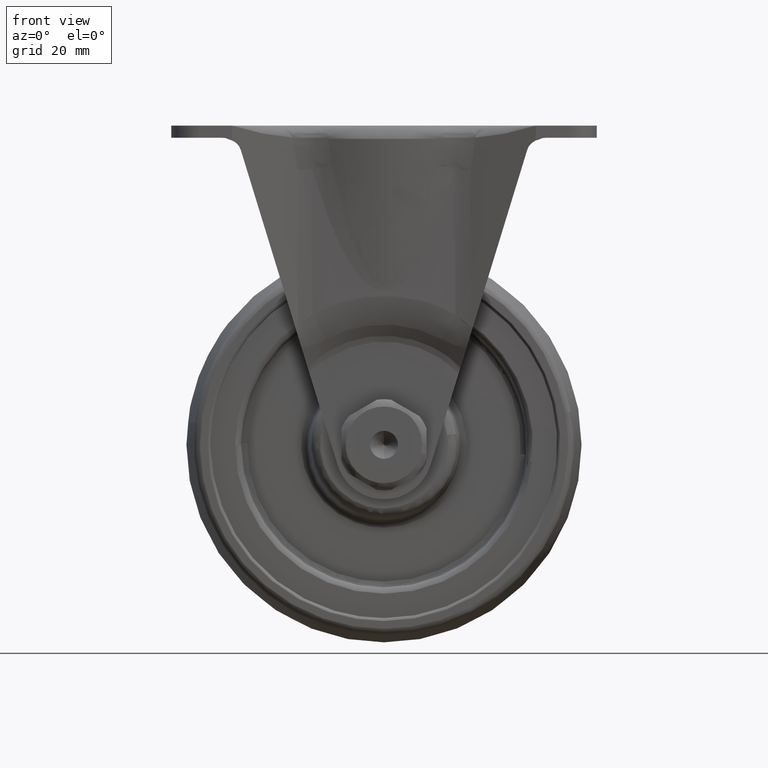
[diagram: clean part render]
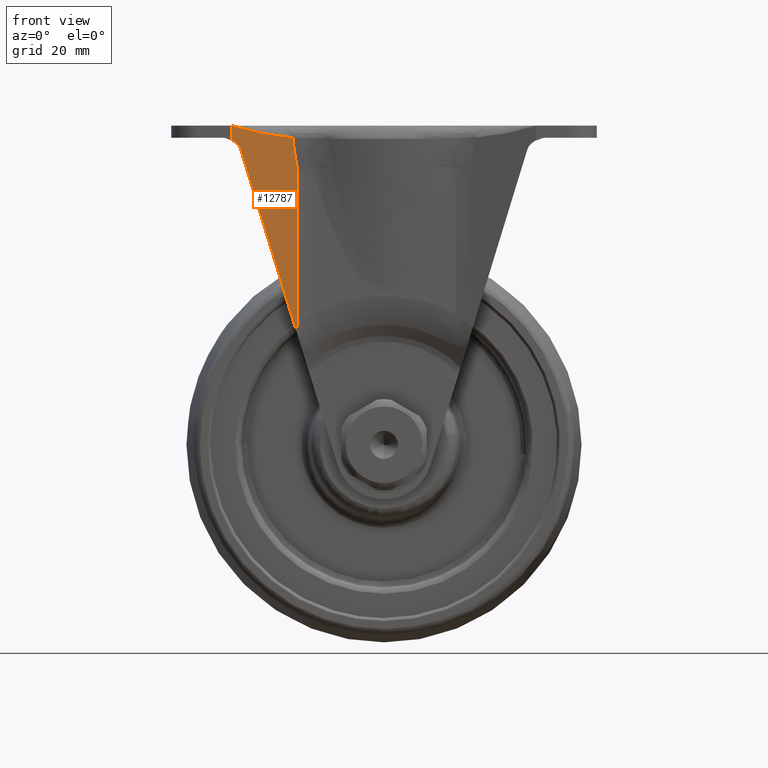
[diagram: same view with one face highlighted and labeled with its STEP entity id]
A machine part, front view. The second image highlights one B-rep face of the part: STEP entity #12787.
In plain terms, the highlighted face is a freeform B-spline surface patch.
Its self-contained STEP definition (entity closure, byte-faithful):
#8333=CARTESIAN_POINT('',(-14.250059904178240,-20.723892466977048,45.268858470410002));
#8334=VERTEX_POINT('',#8333);
#8401=CARTESIAN_POINT('',(-14.908325734011481,-20.893887019310849,49.444294306365101));
#8402=VERTEX_POINT('',#8401);
#8416=CARTESIAN_POINT('',(-14.250059904178309,-20.723892466977070,45.268858470409953));
#8417=CARTESIAN_POINT('',(-14.580186172123796,-20.809146272642856,47.327229750380120));
#8418=CARTESIAN_POINT('',(-14.908325734011481,-20.893887019310849,49.444294306365101));
#8426=(BOUNDED_CURVE()B_SPLINE_CURVE(2,(#8416,#8417,#8418),.UNSPECIFIED.,.F.,.U.)CURVE()GEOMETRIC_REPRESENTATION_ITEM()QUASI_UNIFORM_CURVE()RATIONAL_B_SPLINE_CURVE((1.0,0.999958882724460,1.0))REPRESENTATION_ITEM(''));
#8427=EDGE_CURVE('',#8334,#8402,#8426,.T.);
#8496=CARTESIAN_POINT('',(-14.989855178939120,-20.914941676661101,50.513882271842697));
#8497=VERTEX_POINT('',#8496);
#8511=CARTESIAN_POINT('',(-14.908325734011459,-20.893887019310860,49.444294306365059));
#8512=CARTESIAN_POINT('',(-14.962721287333331,-20.907934456253241,49.795239182619632));
#8513=CARTESIAN_POINT('',(-14.990588619352650,-20.915131084752950,50.151626764992692));
#8514=CARTESIAN_POINT('',(-14.989855178939139,-20.914941676661101,50.513882271842697));
#8515=QUASI_UNIFORM_CURVE('',3,(#8511,#8512,#8513,#8514),.UNSPECIFIED.,.F.,.U.);
#8516=EDGE_CURVE('',#8402,#8497,#8515,.T.);
#9537=CARTESIAN_POINT('',(-24.999914554479648,-23.500000000000000,52.500000000000000));
#9538=VERTEX_POINT('',#9537);
#9539=CARTESIAN_POINT('',(-14.989855178939120,-20.914941676661101,50.513882271842697));
#9540=CARTESIAN_POINT('',(-18.326541637452632,-21.776627784440720,50.637638191180592));
#9541=CARTESIAN_POINT('',(-21.663228095966140,-22.638313892220381,51.568819095590293));
#9542=CARTESIAN_POINT('',(-24.999914554479648,-23.500000000000000,52.500000000000000));
#9543=B_SPLINE_CURVE_WITH_KNOTS('',3,(#9539,#9540,#9541,#9542),.UNSPECIFIED.,.F.,.U.,(4,4),(0.068819095590296,1.0),.UNSPECIFIED.);
#9544=EDGE_CURVE('',#8497,#9538,#9543,.T.);
#10717=CARTESIAN_POINT('',(-23.567250999525001,-23.130020291754750,48.539384805727799));
#10718=VERTEX_POINT('',#10717);
#10726=CARTESIAN_POINT('',(-24.999914554479648,-23.500000000000000,50.078461721846303));
#10727=VERTEX_POINT('',#10726);
#10728=CARTESIAN_POINT('',(-24.999914554479648,-23.500000000000000,50.078461721846303));
#10729=CARTESIAN_POINT('',(-24.836660889227449,-23.457840385322090,50.003521344869583));
#10730=CARTESIAN_POINT('',(-24.680704470820491,-23.417565255839250,49.917141328542563));
#10731=CARTESIAN_POINT('',(-24.459889025076588,-23.360540538549671,49.767004820238732));
#10732=CARTESIAN_POINT('',(-24.388480406212139,-23.342099544582641,49.713515894448939));
#10733=CARTESIAN_POINT('',(-24.285061076836570,-23.315391910974629,49.627492179568897));
#10734=CARTESIAN_POINT('',(-24.251204650916719,-23.306648622614421,49.597850854146081));
#10735=CARTESIAN_POINT('',(-24.184807257706179,-23.289501757892879,49.536506004690899));
#10736=CARTESIAN_POINT('',(-24.152169315163299,-23.281073138055469,49.504700545341883));
#10737=CARTESIAN_POINT('',(-23.993766706171051,-23.240166289509240,49.341465400224017));
#10738=CARTESIAN_POINT('',(-23.883174256670848,-23.211606225941811,49.198569847455488));
#10739=CARTESIAN_POINT('',(-23.766707191988608,-23.181529066191160,49.003336521981687));
#10740=CARTESIAN_POINT('',(-23.744506992522719,-23.175795952304799,48.963455699553933));
#10741=CARTESIAN_POINT('',(-23.702353058223679,-23.164909865156559,48.881979929326690));
#10742=CARTESIAN_POINT('',(-23.682387484057578,-23.159753834433669,48.840339011857182));
#10743=CARTESIAN_POINT('',(-23.626504994405639,-23.145322402053100,48.714101826415423));
#10744=CARTESIAN_POINT('',(-23.594375603822400,-23.137025113751911,48.627793215171081));
#10745=CARTESIAN_POINT('',(-23.567250999525001,-23.130020291754750,48.539384805727799));
#10746=B_SPLINE_CURVE_WITH_KNOTS('',3,(#10728,#10729,#10730,#10731,#10732,#10733,#10734,#10735,#10736,#10737,#10738,#10739,#10740,#10741,#10742,#10743,#10744,#10745),.UNSPECIFIED.,.F.,.U.,(4,2,2,2,2,2,2,2,4),(0.0,0.250000000000021,0.375000000000027,0.437500000000027,0.500000000000027,0.750000000000025,0.812500000000017,0.875000000000008,1.0),.UNSPECIFIED.);
#10747=EDGE_CURVE('',#10727,#10718,#10746,.T.);
#11641=CARTESIAN_POINT('',(-14.528225214446360,-20.795727560416100,19.078092621968601));
#11642=VERTEX_POINT('',#11641);
#11670=CARTESIAN_POINT('',(-14.250059904178240,-20.723892466977048,19.479886328267099));
#11671=VERTEX_POINT('',#11670);
#11689=CARTESIAN_POINT('',(-14.528225214446360,-20.795727560416100,19.078092621968601));
#11690=CARTESIAN_POINT('',(-14.432155020879520,-20.770917812123169,19.209548265240461));
#11691=CARTESIAN_POINT('',(-14.339706422922729,-20.747043326601830,19.343737625477321));
#11692=CARTESIAN_POINT('',(-14.250059904178240,-20.723892466977048,19.479886328267099));
#11693=QUASI_UNIFORM_CURVE('',3,(#11689,#11690,#11691,#11692),.UNSPECIFIED.,.F.,.U.);
#11694=EDGE_CURVE('',#11642,#11671,#11693,.T.);
#11863=CARTESIAN_POINT('',(-14.250059904178240,-20.723892466977048,19.479886328267099));
#11864=CARTESIAN_POINT('',(-14.250059904178240,-20.723892466977048,45.268858470410002));
#11865=QUASI_UNIFORM_CURVE('',1,(#11863,#11864),.UNSPECIFIED.,.F.,.U.);
#11866=EDGE_CURVE('',#11671,#8334,#11865,.T.);
#12254=CARTESIAN_POINT('',(-14.528225214446360,-20.795727560416100,19.078092621968601));
#12255=CARTESIAN_POINT('',(-23.567250999525001,-23.130020291754750,48.539384805727799));
#12256=QUASI_UNIFORM_CURVE('',1,(#12254,#12255),.UNSPECIFIED.,.F.,.U.);
#12257=EDGE_CURVE('',#11642,#10718,#12256,.T.);
#12768=CARTESIAN_POINT('',(-25.536869470691069,-23.638666487713529,17.408668413214080));
#12769=CARTESIAN_POINT('',(-13.713104411299680,-20.585225830341500,17.408668413214080));
#12770=CARTESIAN_POINT('',(-25.536869470691069,-23.638666487713529,54.169425105199927));
#12771=CARTESIAN_POINT('',(-13.713104411299680,-20.585225830341500,54.169425105199927));
#12772=B_SPLINE_SURFACE_WITH_KNOTS('',1,1,((#12768,#12770),(#12769,#12771)),.UNSPECIFIED.,.F.,.F.,.U.,(2,2),(2,2),(0.0,12.211671467402700),(0.0,36.760756691985861),.UNSPECIFIED.);
#12773=ORIENTED_EDGE('',*,*,#11866,.T.);
#12774=ORIENTED_EDGE('',*,*,#8427,.T.);
#12775=ORIENTED_EDGE('',*,*,#8516,.T.);
#12776=ORIENTED_EDGE('',*,*,#9544,.T.);
#12777=CARTESIAN_POINT('',(-24.999914554479648,-23.500000000000000,50.078461721846303));
#12778=CARTESIAN_POINT('',(-24.999914554479648,-23.500000000000000,52.500000000000000));
#12779=QUASI_UNIFORM_CURVE('',1,(#12777,#12778),.UNSPECIFIED.,.F.,.U.);
#12780=EDGE_CURVE('',#10727,#9538,#12779,.T.);
#12781=ORIENTED_EDGE('',*,*,#12780,.F.);
#12782=ORIENTED_EDGE('',*,*,#10747,.T.);
#12783=ORIENTED_EDGE('',*,*,#12257,.F.);
#12784=ORIENTED_EDGE('',*,*,#11694,.T.);
#12785=EDGE_LOOP('',(#12773,#12774,#12775,#12776,#12781,#12782,#12783,#12784));
#12786=FACE_OUTER_BOUND('',#12785,.T.);
#12787=ADVANCED_FACE('',(#12786),#12772,.T.);